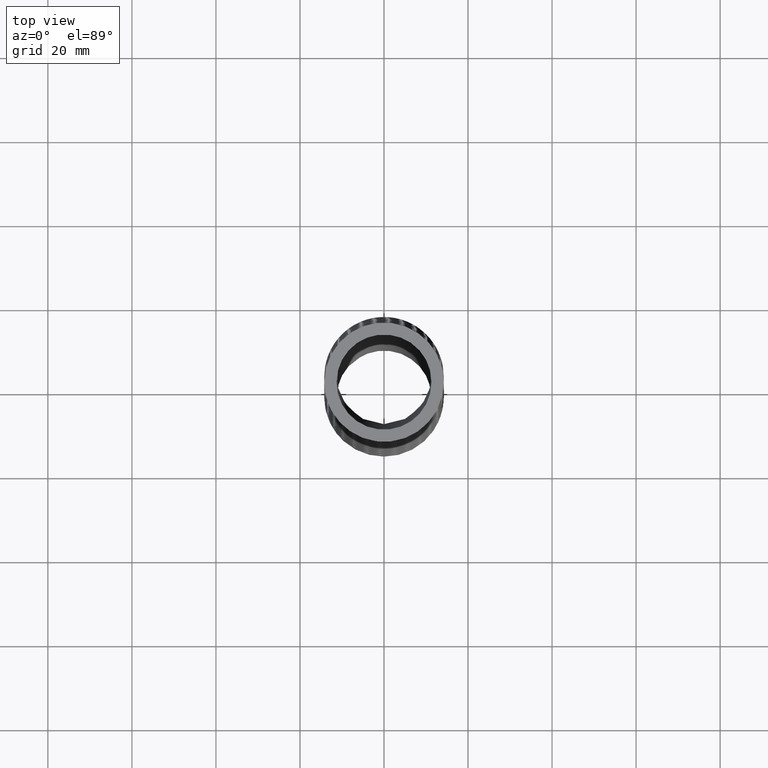
[diagram: clean part render]
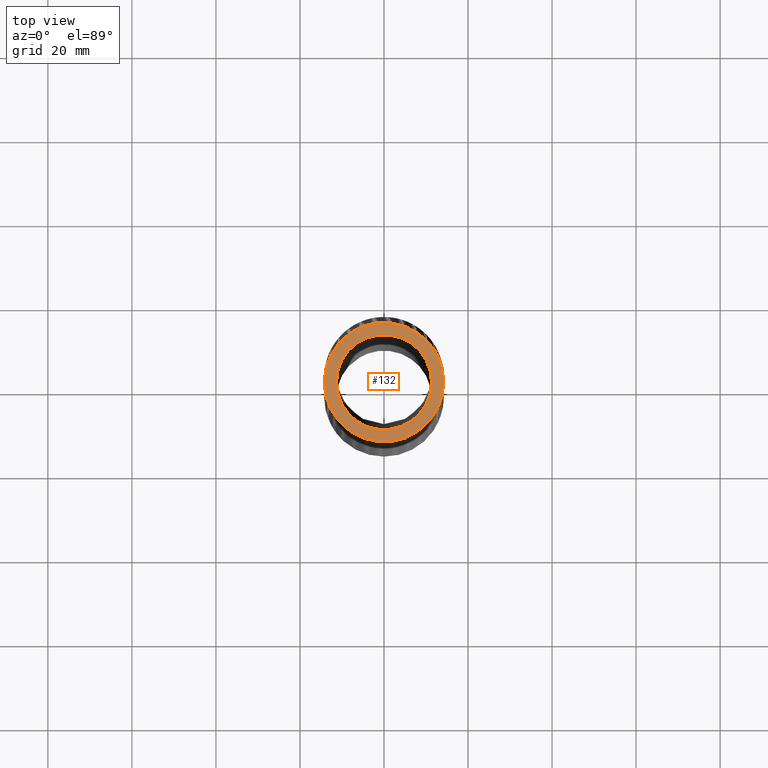
[diagram: same view with one face highlighted and labeled with its STEP entity id]
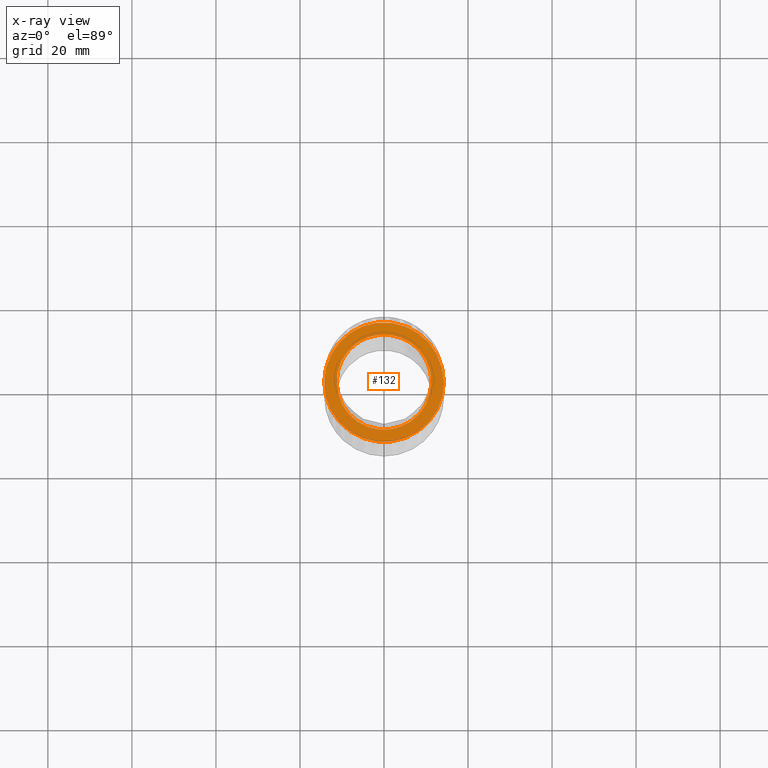
[diagram: x-ray of the same camera — body ghosted, the highlighted face saturated]
A machine part, top view. The second image highlights one B-rep face of the part: STEP entity #132.
The next image is the same camera in x-ray: the body ghosted, the highlighted face saturated — about 0% of this face is hidden behind the body in this view.
In plain terms, the highlighted planar face has unit normal (0, 0, 1).
Its self-contained STEP definition (entity closure, byte-faithful):
#58 = EDGE_CURVE ( 'NONE', #653, #671, #13388, .T. ) ;
#108 = ORIENTED_EDGE ( 'NONE', *, *, #641, .T. ) ;
#117 = ORIENTED_EDGE ( 'NONE', *, *, #58, .T. ) ;
#119 = EDGE_LOOP ( 'NONE', ( #117, #108 ) ) ;
#121 = ORIENTED_EDGE ( 'NONE', *, *, #123, .F. ) ;
#123 = EDGE_CURVE ( 'NONE', #1742, #304, #14504, .T. ) ;
#125 = EDGE_LOOP ( 'NONE', ( #126, #121 ) ) ;
#126 = ORIENTED_EDGE ( 'NONE', *, *, #1702, .F. ) ;
#132 = ADVANCED_FACE ( 'NONE', ( #14673, #14671 ), #14766, .T. ) ;
#304 = VERTEX_POINT ( 'NONE', #15916 ) ;
#641 = EDGE_CURVE ( 'NONE', #671, #653, #17952, .T. ) ;
#653 = VERTEX_POINT ( 'NONE', #18215 ) ;
#671 = VERTEX_POINT ( 'NONE', #18469 ) ;
#1702 = EDGE_CURVE ( 'NONE', #304, #1742, #6613, .T. ) ;
#1742 = VERTEX_POINT ( 'NONE', #7316 ) ;
#6609 = DIRECTION ( 'NONE',  ( 1.000000000000000000, 0.0000000000000000000, 0.0000000000000000000 ) ) ;
#6610 = DIRECTION ( 'NONE',  ( 0.0000000000000000000, 0.0000000000000000000, 1.000000000000000000 ) ) ;
#6611 = CARTESIAN_POINT ( 'NONE',  ( 0.0000000000000000000, 0.0000000000000000000, 0.0000000000000000000 ) ) ;
#6612 = AXIS2_PLACEMENT_3D ( 'NONE', #6611, #6610, #6609 ) ;
#6613 = CIRCLE ( 'NONE', #6612, 0.4450000000000000100 ) ;
#7316 = CARTESIAN_POINT ( 'NONE',  ( -0.4450000000000000100, 5.449678256205722000E-017, 0.0000000000000000000 ) ) ;
#13383 = DIRECTION ( 'NONE',  ( 1.000000000000000000, 0.0000000000000000000, 0.0000000000000000000 ) ) ;
#13384 = DIRECTION ( 'NONE',  ( 0.0000000000000000000, 0.0000000000000000000, 1.000000000000000000 ) ) ;
#13386 = CARTESIAN_POINT ( 'NONE',  ( 0.0000000000000000000, 0.0000000000000000000, 0.0000000000000000000 ) ) ;
#13387 = AXIS2_PLACEMENT_3D ( 'NONE', #13386, #13384, #13383 ) ;
#13388 = CIRCLE ( 'NONE', #13387, 0.5600000000000000500 ) ;
#14504 = CIRCLE ( 'NONE', #14569, 0.4450000000000000100 ) ;
#14564 = DIRECTION ( 'NONE',  ( 1.000000000000000000, 0.0000000000000000000, 0.0000000000000000000 ) ) ;
#14566 = DIRECTION ( 'NONE',  ( 0.0000000000000000000, 0.0000000000000000000, 1.000000000000000000 ) ) ;
#14568 = CARTESIAN_POINT ( 'NONE',  ( 0.0000000000000000000, 0.0000000000000000000, 0.0000000000000000000 ) ) ;
#14569 = AXIS2_PLACEMENT_3D ( 'NONE', #14568, #14566, #14564 ) ;
#14671 = FACE_OUTER_BOUND ( 'NONE', #119, .T. ) ;
#14673 = FACE_BOUND ( 'NONE', #125, .T. ) ;
#14759 = DIRECTION ( 'NONE',  ( 1.000000000000000000, 0.0000000000000000000, 0.0000000000000000000 ) ) ;
#14761 = DIRECTION ( 'NONE',  ( 0.0000000000000000000, 0.0000000000000000000, 1.000000000000000000 ) ) ;
#14763 = CARTESIAN_POINT ( 'NONE',  ( 0.0000000000000000000, 0.0000000000000000000, 0.0000000000000000000 ) ) ;
#14764 = AXIS2_PLACEMENT_3D ( 'NONE', #14763, #14761, #14759 ) ;
#14766 = PLANE ( 'NONE',  #14764 ) ;
#15916 = CARTESIAN_POINT ( 'NONE',  ( 0.4450000000000000100, 0.0000000000000000000, 0.0000000000000000000 ) ) ;
#17952 = CIRCLE ( 'NONE', #17987, 0.5600000000000000500 ) ;
#17985 = DIRECTION ( 'NONE',  ( 0.0000000000000000000, 0.0000000000000000000, 1.000000000000000000 ) ) ;
#17986 = CARTESIAN_POINT ( 'NONE',  ( 0.0000000000000000000, 0.0000000000000000000, 0.0000000000000000000 ) ) ;
#17987 = AXIS2_PLACEMENT_3D ( 'NONE', #17986, #17985, #18051 ) ;
#18051 = DIRECTION ( 'NONE',  ( 1.000000000000000000, 0.0000000000000000000, 0.0000000000000000000 ) ) ;
#18215 = CARTESIAN_POINT ( 'NONE',  ( 0.5600000000000000500, 0.0000000000000000000, 0.0000000000000000000 ) ) ;
#18469 = CARTESIAN_POINT ( 'NONE',  ( -0.5600000000000000500, 6.858022075225177600E-017, 0.0000000000000000000 ) ) ;